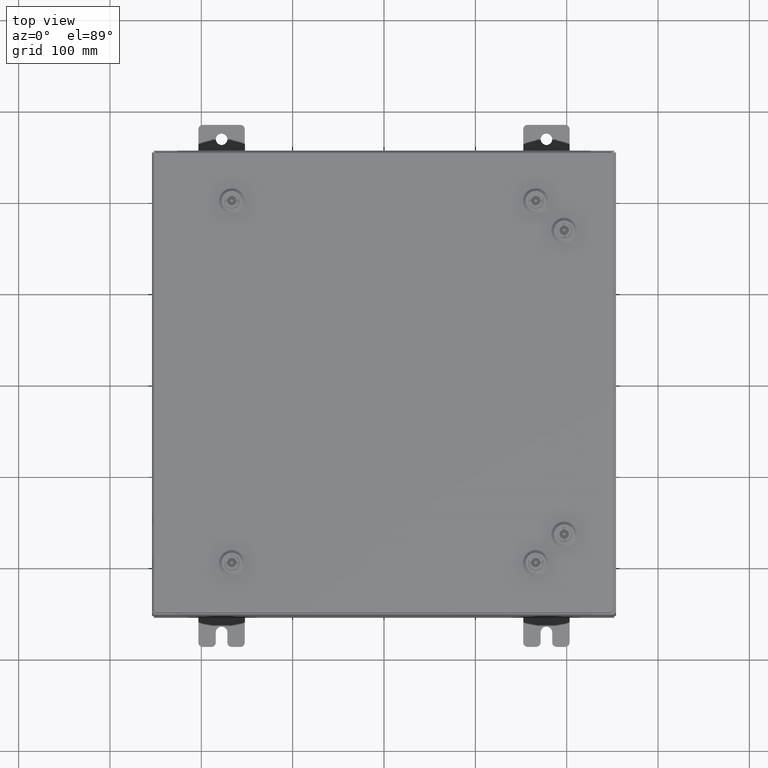
[diagram: clean part render]
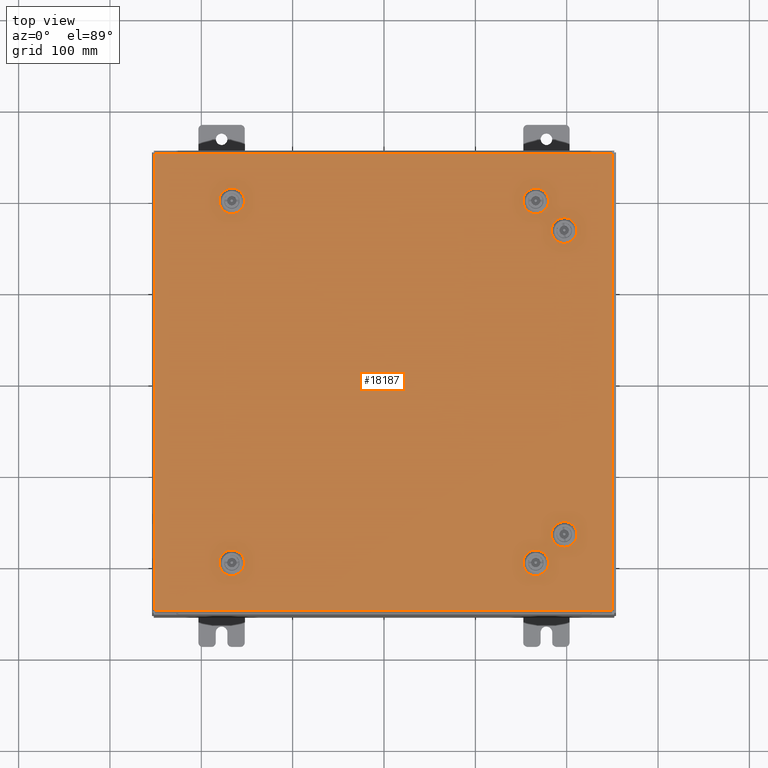
[diagram: same view with one face highlighted and labeled with its STEP entity id]
A machine part, top view. The second image highlights one B-rep face of the part: STEP entity #18187.
In plain terms, the highlighted planar face has unit normal (0, 0, -1).
Its self-contained STEP definition (entity closure, byte-faithful):
#22 = CARTESIAN_POINT ( 'NONE',  ( 8.182800000000003800, 6.363047624732128100, 0.0000000000000000000 ) ) ;
#311 = EDGE_CURVE ( 'NONE', #61048, #31898, #35029, .T. ) ;
#457 = AXIS2_PLACEMENT_3D ( 'NONE', #49362, #20015, #54211 ) ;
#518 = CARTESIAN_POINT ( 'NONE',  ( 8.182800000000000300, -6.761952375267896700, -2.447735802323179600E-013 ) ) ;
#872 = CARTESIAN_POINT ( 'NONE',  ( 7.787800000000005200, 6.562500000000010700, 0.0000000000000000000 ) ) ;
#1576 = EDGE_CURVE ( 'NONE', #29633, #61048, #63192, .T. ) ;
#1777 = DIRECTION ( 'NONE',  ( -0.0000000000000000000, -6.982962677686266700E-015, 1.000000000000000000 ) ) ;
#1798 = DIRECTION ( 'NONE',  ( -8.218046007208852600E-015, 1.000000000000000000, -0.0000000000000000000 ) ) ;
#1945 = DIRECTION ( 'NONE',  ( -1.000000000000000000, 1.369674334534793800E-014, 0.0000000000000000000 ) ) ;
#2150 = DIRECTION ( 'NONE',  ( 0.0000000000000000000, 0.0000000000000000000, 1.000000000000000000 ) ) ;
#2529 = CARTESIAN_POINT ( 'NONE',  ( 6.562499999999986700, 7.787799999999991800, -2.622574073917692700E-014 ) ) ;
#2683 = VECTOR ( 'NONE', #3079, 39.37007874015748100 ) ;
#2891 = DIRECTION ( 'NONE',  ( 1.000000000000000000, 0.0000000000000000000, 6.982962677686261200E-015 ) ) ;
#3079 = DIRECTION ( 'NONE',  ( 1.000000000000000000, -2.739348669069610000E-015, -6.982962677686248600E-015 ) ) ;
#3334 = CIRCLE ( 'NONE', #38573, 0.4424999999999983400 ) ;
#3582 = VERTEX_POINT ( 'NONE', #45254 ) ;
#3662 = VECTOR ( 'NONE', #46640, 39.37007874015748100 ) ;
#3689 = AXIS2_PLACEMENT_3D ( 'NONE', #21235, #55432, #26190 ) ;
#3944 = AXIS2_PLACEMENT_3D ( 'NONE', #40032, #10651, #44958 ) ;
#4770 = CARTESIAN_POINT ( 'NONE',  ( 7.392800000000011800, 6.761952375267901200, 0.0000000000000000000 ) ) ;
#5348 = FACE_BOUND ( 'NONE', #11235, .T. ) ;
#5511 = VERTEX_POINT ( 'NONE', #48692 ) ;
#5816 = DIRECTION ( 'NONE',  ( 1.000000000000000000, 0.0000000000000000000, 0.0000000000000000000 ) ) ;
#6907 = FACE_BOUND ( 'NONE', #38038, .T. ) ;
#7014 = CARTESIAN_POINT ( 'NONE',  ( 7.787800000000005200, 6.562500000000010700, 0.0000000000000000000 ) ) ;
#7067 = AXIS2_PLACEMENT_3D ( 'NONE', #31256, #1777, #36190 ) ;
#7082 = CIRCLE ( 'NONE', #19044, 0.4424999999999983400 ) ;
#7509 = DIRECTION ( 'NONE',  ( -1.000000000000000000, 0.0000000000000000000, 6.982962677686269100E-015 ) ) ;
#7727 = CARTESIAN_POINT ( 'NONE',  ( -6.761952375267871900, -7.392799999999994000, -4.698778549102532700E-014 ) ) ;
#8132 = EDGE_CURVE ( 'NONE', #42763, #42127, #27410, .T. ) ;
#8490 = AXIS2_PLACEMENT_3D ( 'NONE', #54530, #25251, #59462 ) ;
#9126 = LINE ( 'NONE', #21083, #59688 ) ;
#9392 = EDGE_CURVE ( 'NONE', #31898, #34465, #19656, .T. ) ;
#9394 = EDGE_CURVE ( 'NONE', #33150, #40357, #35825, .T. ) ;
#9912 = VERTEX_POINT ( 'NONE', #34617 ) ;
#10133 = EDGE_CURVE ( 'NONE', #24468, #39558, #37265, .T. ) ;
#10628 = LINE ( 'NONE', #26259, #61214 ) ;
#10651 = DIRECTION ( 'NONE',  ( 0.0000000000000000000, 0.0000000000000000000, 1.000000000000000000 ) ) ;
#10683 = ORIENTED_EDGE ( 'NONE', *, *, #311, .T. ) ;
#11075 = CARTESIAN_POINT ( 'NONE',  ( -6.761952375267871900, 7.392799999999992300, 0.0000000000000000000 ) ) ;
#11212 = CIRCLE ( 'NONE', #17992, 0.4424999999999983400 ) ;
#11235 = EDGE_LOOP ( 'NONE', ( #57836, #35453, #31455, #42371, #29610 ) ) ;
#11386 = EDGE_CURVE ( 'NONE', #42127, #27665, #15796, .T. ) ;
#11466 = LINE ( 'NONE', #49229, #62028 ) ;
#11647 = ORIENTED_EDGE ( 'NONE', *, *, #47658, .F. ) ;
#11695 = CARTESIAN_POINT ( 'NONE',  ( 7.392800000000014500, -6.761952375267901200, -2.447735802323179600E-013 ) ) ;
#11960 = DIRECTION ( 'NONE',  ( 1.000000000000000000, 0.0000000000000000000, 0.0000000000000000000 ) ) ;
#12090 = CARTESIAN_POINT ( 'NONE',  ( 8.182800000000000300, 6.761952375267896700, 0.0000000000000000000 ) ) ;
#12820 = ORIENTED_EDGE ( 'NONE', *, *, #48831, .F. ) ;
#12914 = CARTESIAN_POINT ( 'NONE',  ( 9.849799999999996600, -9.849800000000001900, 0.0000000000000000000 ) ) ;
#12940 = CARTESIAN_POINT ( 'NONE',  ( -6.119999999999989400, -7.787799999999991800, -4.917326388595673900E-014 ) ) ;
#13000 = ORIENTED_EDGE ( 'NONE', *, *, #9392, .T. ) ;
#13319 = CARTESIAN_POINT ( 'NONE',  ( 6.363047624732095300, -8.182799999999980800, -2.731847993664263300E-014 ) ) ;
#14097 = VERTEX_POINT ( 'NONE', #28596 ) ;
#14270 = AXIS2_PLACEMENT_3D ( 'NONE', #31621, #2150, #36529 ) ;
#15349 = DIRECTION ( 'NONE',  ( 0.0000000000000000000, -1.000000000000000000, 0.0000000000000000000 ) ) ;
#15689 = CARTESIAN_POINT ( 'NONE',  ( 7.787800000000006100, -6.562500000000010700, -2.425881018373865900E-013 ) ) ;
#15796 = LINE ( 'NONE', #17748, #2683 ) ;
#15806 = ORIENTED_EDGE ( 'NONE', *, *, #36925, .F. ) ;
#16069 = CARTESIAN_POINT ( 'NONE',  ( 6.761952375267871900, 7.392799999999994000, -2.731847993664263300E-014 ) ) ;
#16404 = DIRECTION ( 'NONE',  ( -0.0000000000000000000, -6.982962677686266700E-015, 1.000000000000000000 ) ) ;
#16409 = CARTESIAN_POINT ( 'NONE',  ( 6.363047624732101500, 7.392799999999995800, -2.513300154171122100E-014 ) ) ;
#16482 = DIRECTION ( 'NONE',  ( 6.982962677686266700E-015, -0.0000000000000000000, 1.000000000000000000 ) ) ;
#16606 = CARTESIAN_POINT ( 'NONE',  ( -6.363047624732095300, 8.182799999999980800, 0.0000000000000000000 ) ) ;
#17062 = VECTOR ( 'NONE', #1945, 39.37007874015748100 ) ;
#17178 = EDGE_LOOP ( 'NONE', ( #43164, #54833, #27055, #42477, #44356 ) ) ;
#17304 = CARTESIAN_POINT ( 'NONE',  ( 7.392800000000011800, 6.761952375267901200, 0.0000000000000000000 ) ) ;
#17404 = VERTEX_POINT ( 'NONE', #11075 ) ;
#17517 = ORIENTED_EDGE ( 'NONE', *, *, #57727, .F. ) ;
#17748 = CARTESIAN_POINT ( 'NONE',  ( 6.363047624732101500, 7.392799999999995800, -2.513300154171122100E-014 ) ) ;
#17992 = AXIS2_PLACEMENT_3D ( 'NONE', #7014, #41336, #11960 ) ;
#18039 = EDGE_CURVE ( 'NONE', #17404, #24115, #62097, .T. ) ;
#18187 = ADVANCED_FACE ( 'NONE', ( #18468, #6907, #46072, #31533, #5348, #55915, #42960 ), #20864, .F. ) ;
#18468 = FACE_BOUND ( 'NONE', #34828, .T. ) ;
#18797 = DIRECTION ( 'NONE',  ( -6.982962677686266700E-015, -6.982962677686266700E-015, 1.000000000000000000 ) ) ;
#18898 = ORIENTED_EDGE ( 'NONE', *, *, #30823, .F. ) ;
#19040 = CARTESIAN_POINT ( 'NONE',  ( -6.363047624732101500, -7.392799999999995800, -4.698778549102532700E-014 ) ) ;
#19044 = AXIS2_PLACEMENT_3D ( 'NONE', #52082, #22753, #56947 ) ;
#19123 = VERTEX_POINT ( 'NONE', #57248 ) ;
#19186 = ORIENTED_EDGE ( 'NONE', *, *, #9394, .F. ) ;
#19189 = LINE ( 'NONE', #19040, #56653 ) ;
#19625 = ORIENTED_EDGE ( 'NONE', *, *, #50236, .F. ) ;
#19656 = LINE ( 'NONE', #30105, #32734 ) ;
#19683 = CARTESIAN_POINT ( 'NONE',  ( 9.849799999999996600, -9.849800000000001900, 0.0000000000000000000 ) ) ;
#19781 = CARTESIAN_POINT ( 'NONE',  ( -6.363047624732095300, -8.182799999999984300, -5.245148147835385400E-014 ) ) ;
#20015 = DIRECTION ( 'NONE',  ( -0.0000000000000000000, -6.982962677686266700E-015, 1.000000000000000000 ) ) ;
#20148 = EDGE_LOOP ( 'NONE', ( #60399, #23119, #10683, #13000 ) ) ;
#20319 = DIRECTION ( 'NONE',  ( -1.000000000000000000, -1.369674334534793800E-014, 6.982962677686269100E-015 ) ) ;
#20602 = DIRECTION ( 'NONE',  ( 0.0000000000000000000, 1.000000000000000000, 6.982962677686287200E-015 ) ) ;
#20864 = PLANE ( 'NONE',  #35246 ) ;
#21083 = CARTESIAN_POINT ( 'NONE',  ( -9.849799999999996600, -9.849800000000001900, 0.0000000000000000000 ) ) ;
#21235 = CARTESIAN_POINT ( 'NONE',  ( -6.562499999999986700, -7.787799999999991800, -4.917326388595673900E-014 ) ) ;
#21414 = CARTESIAN_POINT ( 'NONE',  ( 6.363047624732095300, 8.182799999999984300, -2.513300154171122100E-014 ) ) ;
#21905 = VERTEX_POINT ( 'NONE', #13319 ) ;
#22008 = CARTESIAN_POINT ( 'NONE',  ( 8.182800000000000300, -6.761952375267896700, -2.447735802323179600E-013 ) ) ;
#22044 = CIRCLE ( 'NONE', #14270, 0.4424999999999972800 ) ;
#22095 = AXIS2_PLACEMENT_3D ( 'NONE', #26272, #60493, #31253 ) ;
#22164 = ORIENTED_EDGE ( 'NONE', *, *, #46710, .F. ) ;
#22376 = ORIENTED_EDGE ( 'NONE', *, *, #10133, .F. ) ;
#22753 = DIRECTION ( 'NONE',  ( -6.982962677686266700E-015, -6.982962677686266700E-015, 1.000000000000000000 ) ) ;
#22956 = ORIENTED_EDGE ( 'NONE', *, *, #39429, .F. ) ;
#23053 = EDGE_CURVE ( 'NONE', #28097, #24468, #52639, .T. ) ;
#23119 = ORIENTED_EDGE ( 'NONE', *, *, #1576, .T. ) ;
#23125 = VECTOR ( 'NONE', #26955, 39.37007874015748100 ) ;
#23372 = CARTESIAN_POINT ( 'NONE',  ( 9.849799999999994800, 9.849799999999996600, 0.0000000000000000000 ) ) ;
#24115 = VERTEX_POINT ( 'NONE', #45752 ) ;
#24152 = DIRECTION ( 'NONE',  ( -1.000000000000000000, 2.739348669069610000E-015, 1.946424297521510000E-029 ) ) ;
#24468 = VERTEX_POINT ( 'NONE', #19781 ) ;
#24577 = VECTOR ( 'NONE', #24810, 39.37007874015748100 ) ;
#24771 = CIRCLE ( 'NONE', #31017, 0.4424999999999972800 ) ;
#24810 = DIRECTION ( 'NONE',  ( 1.000000000000000000, 2.739348669069610000E-015, -0.0000000000000000000 ) ) ;
#24982 = DIRECTION ( 'NONE',  ( -1.000000000000000000, -2.739348669069610000E-015, -6.982962677686276200E-015 ) ) ;
#25251 = DIRECTION ( 'NONE',  ( 0.0000000000000000000, 0.0000000000000000000, 1.000000000000000000 ) ) ;
#25450 = CARTESIAN_POINT ( 'NONE',  ( -9.849799999999996600, -9.849800000000001900, 0.0000000000000000000 ) ) ;
#25632 = CARTESIAN_POINT ( 'NONE',  ( 7.392800000000010000, -6.363047624732128100, 0.0000000000000000000 ) ) ;
#25684 = VECTOR ( 'NONE', #43900, 39.37007874015748100 ) ;
#25992 = VERTEX_POINT ( 'NONE', #22 ) ;
#26046 = DIRECTION ( 'NONE',  ( 1.000000000000000000, -0.0000000000000000000, -0.0000000000000000000 ) ) ;
#26190 = DIRECTION ( 'NONE',  ( 0.0000000000000000000, 1.000000000000000000, 6.982962677686269100E-015 ) ) ;
#26259 = CARTESIAN_POINT ( 'NONE',  ( 6.363047624732095300, -8.182799999999980800, -2.731847993664263300E-014 ) ) ;
#26272 = CARTESIAN_POINT ( 'NONE',  ( 6.562499999999986700, 7.787799999999991800, -2.622574073917692700E-014 ) ) ;
#26955 = DIRECTION ( 'NONE',  ( 1.095739467627835000E-014, -1.000000000000000000, -6.982962677686248600E-015 ) ) ;
#27055 = ORIENTED_EDGE ( 'NONE', *, *, #56673, .F. ) ;
#27284 = CARTESIAN_POINT ( 'NONE',  ( 7.392800000000014500, -6.761952375267901200, -2.447735802323179600E-013 ) ) ;
#27410 = CIRCLE ( 'NONE', #40878, 0.4424999999999972800 ) ;
#27486 = EDGE_LOOP ( 'NONE', ( #61955, #37559, #22164, #49994, #22376 ) ) ;
#27665 = VERTEX_POINT ( 'NONE', #16069 ) ;
#27907 = EDGE_CURVE ( 'NONE', #57656, #21905, #24771, .T. ) ;
#28058 = ORIENTED_EDGE ( 'NONE', *, *, #29581, .F. ) ;
#28090 = EDGE_CURVE ( 'NONE', #29497, #32233, #57663, .T. ) ;
#28097 = VERTEX_POINT ( 'NONE', #40104 ) ;
#28596 = CARTESIAN_POINT ( 'NONE',  ( 6.761952375267868300, 8.182799999999989600, 0.0000000000000000000 ) ) ;
#29252 = CARTESIAN_POINT ( 'NONE',  ( -6.761952375267868300, 8.182799999999986100, 0.0000000000000000000 ) ) ;
#29497 = VERTEX_POINT ( 'NONE', #11695 ) ;
#29581 = EDGE_CURVE ( 'NONE', #55817, #29497, #62171, .T. ) ;
#29610 = ORIENTED_EDGE ( 'NONE', *, *, #8132, .F. ) ;
#29633 = VERTEX_POINT ( 'NONE', #12914 ) ;
#30066 = LINE ( 'NONE', #16606, #17062 ) ;
#30105 = CARTESIAN_POINT ( 'NONE',  ( -9.849800000000001900, 9.849799999999996600, -2.185478394931410600E-015 ) ) ;
#30768 = DIRECTION ( 'NONE',  ( -1.000000000000000000, 0.0000000000000000000, -0.0000000000000000000 ) ) ;
#30823 = EDGE_CURVE ( 'NONE', #43595, #55817, #49887, .T. ) ;
#31017 = AXIS2_PLACEMENT_3D ( 'NONE', #48155, #18797, #53004 ) ;
#31112 = LINE ( 'NONE', #49691, #52461 ) ;
#31253 = DIRECTION ( 'NONE',  ( -1.000000000000000000, 0.0000000000000000000, 6.982962677686261200E-015 ) ) ;
#31256 = CARTESIAN_POINT ( 'NONE',  ( 7.787800000000006100, -6.562500000000010700, -2.425881018373865900E-013 ) ) ;
#31287 = CARTESIAN_POINT ( 'NONE',  ( 8.182800000000000300, 6.761952375267896700, 0.0000000000000000000 ) ) ;
#31455 = ORIENTED_EDGE ( 'NONE', *, *, #51184, .F. ) ;
#31533 = FACE_BOUND ( 'NONE', #27486, .T. ) ;
#31621 = CARTESIAN_POINT ( 'NONE',  ( -6.562499999999986700, 7.787799999999989200, 0.0000000000000000000 ) ) ;
#31627 = CARTESIAN_POINT ( 'NONE',  ( -6.119999999999989400, 7.787799999999989200, 0.0000000000000000000 ) ) ;
#31898 = VERTEX_POINT ( 'NONE', #33153 ) ;
#32025 = CARTESIAN_POINT ( 'NONE',  ( 8.182800000000003800, -6.363047624732128100, -2.414953626399208800E-013 ) ) ;
#32233 = VERTEX_POINT ( 'NONE', #518 ) ;
#32381 = DIRECTION ( 'NONE',  ( -6.982962677686266700E-015, -6.982962677686266700E-015, 1.000000000000000000 ) ) ;
#32542 = LINE ( 'NONE', #22008, #56928 ) ;
#32618 = VECTOR ( 'NONE', #1798, 39.37007874015748100 ) ;
#32734 = VECTOR ( 'NONE', #15349, 39.37007874015748100 ) ;
#32975 = EDGE_CURVE ( 'NONE', #21905, #59750, #10628, .T. ) ;
#33150 = VERTEX_POINT ( 'NONE', #12090 ) ;
#33153 = CARTESIAN_POINT ( 'NONE',  ( -9.849800000000001900, 9.849799999999996600, -2.185478394931410600E-015 ) ) ;
#34465 = VERTEX_POINT ( 'NONE', #25450 ) ;
#34617 = CARTESIAN_POINT ( 'NONE',  ( 7.004999999999984800, 7.787799999999991800, -2.931570172405309100E-014 ) ) ;
#34754 = AXIS2_PLACEMENT_3D ( 'NONE', #45761, #16404, #50676 ) ;
#34828 = EDGE_LOOP ( 'NONE', ( #28058, #18898, #22956, #52276 ) ) ;
#35029 = LINE ( 'NONE', #23372, #59427 ) ;
#35203 = ORIENTED_EDGE ( 'NONE', *, *, #61656, .F. ) ;
#35246 = AXIS2_PLACEMENT_3D ( 'NONE', #55075, #60009, #30768 ) ;
#35290 = DIRECTION ( 'NONE',  ( 0.0000000000000000000, 0.0000000000000000000, 1.000000000000000000 ) ) ;
#35453 = ORIENTED_EDGE ( 'NONE', *, *, #61757, .F. ) ;
#35825 = CIRCLE ( 'NONE', #43571, 0.4424999999999972800 ) ;
#36190 = DIRECTION ( 'NONE',  ( 0.0000000000000000000, 1.000000000000000000, 6.982962677686270700E-015 ) ) ;
#36432 = VERTEX_POINT ( 'NONE', #49585 ) ;
#36529 = DIRECTION ( 'NONE',  ( 1.000000000000000000, 0.0000000000000000000, 0.0000000000000000000 ) ) ;
#36925 = EDGE_CURVE ( 'NONE', #48579, #17404, #49514, .T. ) ;
#36927 = DIRECTION ( 'NONE',  ( 6.982962677686266700E-015, -0.0000000000000000000, 1.000000000000000000 ) ) ;
#37265 = CIRCLE ( 'NONE', #3689, 0.4424999999999972800 ) ;
#37559 = ORIENTED_EDGE ( 'NONE', *, *, #58628, .F. ) ;
#37723 = EDGE_CURVE ( 'NONE', #14097, #42763, #31112, .T. ) ;
#38038 = EDGE_LOOP ( 'NONE', ( #39090, #19625, #11647, #19186 ) ) ;
#38573 = AXIS2_PLACEMENT_3D ( 'NONE', #61595, #32381, #2891 ) ;
#38650 = EDGE_CURVE ( 'NONE', #19123, #38849, #3334, .T. ) ;
#38839 = DIRECTION ( 'NONE',  ( 1.000000000000000000, 1.369674334534793800E-014, 9.732121487607470400E-029 ) ) ;
#38849 = VERTEX_POINT ( 'NONE', #56243 ) ;
#39090 = ORIENTED_EDGE ( 'NONE', *, *, #40010, .F. ) ;
#39429 = EDGE_CURVE ( 'NONE', #32233, #43595, #32542, .T. ) ;
#39558 = VERTEX_POINT ( 'NONE', #12940 ) ;
#39862 = CARTESIAN_POINT ( 'NONE',  ( 6.761952375267868300, -8.182799999999986100, -2.513300154171122100E-014 ) ) ;
#40010 = EDGE_CURVE ( 'NONE', #25992, #33150, #60087, .T. ) ;
#40032 = CARTESIAN_POINT ( 'NONE',  ( -6.562499999999986700, 7.787799999999989200, 0.0000000000000000000 ) ) ;
#40104 = CARTESIAN_POINT ( 'NONE',  ( -6.761952375267868300, -8.182799999999989600, 0.0000000000000000000 ) ) ;
#40357 = VERTEX_POINT ( 'NONE', #4770 ) ;
#40421 = EDGE_LOOP ( 'NONE', ( #53788, #15806, #17517, #35203, #12820 ) ) ;
#40840 = AXIS2_PLACEMENT_3D ( 'NONE', #15689, #49966, #20602 ) ;
#40878 = AXIS2_PLACEMENT_3D ( 'NONE', #2529, #36927, #7509 ) ;
#41336 = DIRECTION ( 'NONE',  ( 0.0000000000000000000, 0.0000000000000000000, 1.000000000000000000 ) ) ;
#41357 = AXIS2_PLACEMENT_3D ( 'NONE', #45843, #16482, #50748 ) ;
#41504 = CIRCLE ( 'NONE', #34754, 0.4424999999999983400 ) ;
#42127 = VERTEX_POINT ( 'NONE', #16409 ) ;
#42371 = ORIENTED_EDGE ( 'NONE', *, *, #11386, .F. ) ;
#42477 = ORIENTED_EDGE ( 'NONE', *, *, #32975, .F. ) ;
#42763 = VERTEX_POINT ( 'NONE', #21414 ) ;
#42960 = FACE_OUTER_BOUND ( 'NONE', #20148, .T. ) ;
#43164 = ORIENTED_EDGE ( 'NONE', *, *, #46915, .F. ) ;
#43349 = EDGE_CURVE ( 'NONE', #39558, #3582, #59906, .T. ) ;
#43571 = AXIS2_PLACEMENT_3D ( 'NONE', #872, #35290, #5816 ) ;
#43595 = VERTEX_POINT ( 'NONE', #32025 ) ;
#43900 = DIRECTION ( 'NONE',  ( 0.0000000000000000000, 1.000000000000000000, 0.0000000000000000000 ) ) ;
#44142 = CIRCLE ( 'NONE', #41357, 0.4424999999999983400 ) ;
#44356 = ORIENTED_EDGE ( 'NONE', *, *, #27907, .F. ) ;
#44958 = DIRECTION ( 'NONE',  ( 1.000000000000000000, 0.0000000000000000000, 0.0000000000000000000 ) ) ;
#45254 = CARTESIAN_POINT ( 'NONE',  ( -6.363047624732101500, -7.392799999999995800, -4.698778549102532700E-014 ) ) ;
#45752 = CARTESIAN_POINT ( 'NONE',  ( -6.363047624732101500, 7.392799999999993200, 0.0000000000000000000 ) ) ;
#45761 = CARTESIAN_POINT ( 'NONE',  ( -6.562499999999986700, -7.787799999999991800, -4.917326388595673900E-014 ) ) ;
#45772 = DIRECTION ( 'NONE',  ( 1.000000000000000000, -1.369674334534793800E-014, 6.982962677686171300E-015 ) ) ;
#45843 = CARTESIAN_POINT ( 'NONE',  ( 6.562499999999986700, 7.787799999999991800, -2.622574073917692700E-014 ) ) ;
#46072 = FACE_BOUND ( 'NONE', #17178, .T. ) ;
#46640 = DIRECTION ( 'NONE',  ( -8.218046007208762600E-015, -1.000000000000000000, 0.0000000000000000000 ) ) ;
#46681 = DIRECTION ( 'NONE',  ( 8.218046007208852600E-015, 1.000000000000000000, 6.982962677686325100E-015 ) ) ;
#46710 = EDGE_CURVE ( 'NONE', #3582, #53196, #19189, .T. ) ;
#46915 = EDGE_CURVE ( 'NONE', #38849, #57656, #11466, .T. ) ;
#47658 = EDGE_CURVE ( 'NONE', #40357, #36432, #55786, .T. ) ;
#48155 = CARTESIAN_POINT ( 'NONE',  ( 6.562499999999986700, -7.787799999999989200, -2.294752314677981200E-014 ) ) ;
#48579 = VERTEX_POINT ( 'NONE', #29252 ) ;
#48692 = CARTESIAN_POINT ( 'NONE',  ( -6.363047624732095300, 8.182799999999980800, 0.0000000000000000000 ) ) ;
#48766 = CIRCLE ( 'NONE', #8490, 0.4424999999999972800 ) ;
#48831 = EDGE_CURVE ( 'NONE', #24115, #56558, #22044, .T. ) ;
#49229 = CARTESIAN_POINT ( 'NONE',  ( 6.363047624732101500, -7.392799999999993200, -2.185478394931410600E-014 ) ) ;
#49362 = CARTESIAN_POINT ( 'NONE',  ( -6.562499999999986700, -7.787799999999991800, -4.917326388595673900E-014 ) ) ;
#49514 = CIRCLE ( 'NONE', #3944, 0.4424999999999983400 ) ;
#49585 = CARTESIAN_POINT ( 'NONE',  ( 7.392800000000008300, 6.363047624732128100, 0.0000000000000000000 ) ) ;
#49691 = CARTESIAN_POINT ( 'NONE',  ( 6.363047624732095300, 8.182799999999984300, -2.513300154171122100E-014 ) ) ;
#49887 = CIRCLE ( 'NONE', #7067, 0.4424999999999983400 ) ;
#49966 = DIRECTION ( 'NONE',  ( -0.0000000000000000000, -6.982962677686266700E-015, 1.000000000000000000 ) ) ;
#49994 = ORIENTED_EDGE ( 'NONE', *, *, #43349, .F. ) ;
#50236 = EDGE_CURVE ( 'NONE', #36432, #25992, #11212, .T. ) ;
#50676 = DIRECTION ( 'NONE',  ( 0.0000000000000000000, 1.000000000000000000, 6.982962677686270700E-015 ) ) ;
#50748 = DIRECTION ( 'NONE',  ( -1.000000000000000000, 0.0000000000000000000, 6.982962677686261200E-015 ) ) ;
#51158 = VECTOR ( 'NONE', #38839, 39.37007874015748100 ) ;
#51184 = EDGE_CURVE ( 'NONE', #27665, #9912, #54786, .T. ) ;
#52082 = CARTESIAN_POINT ( 'NONE',  ( 6.562499999999986700, -7.787799999999989200, -2.294752314677981200E-014 ) ) ;
#52276 = ORIENTED_EDGE ( 'NONE', *, *, #28090, .F. ) ;
#52461 = VECTOR ( 'NONE', #20319, 39.37007874015748100 ) ;
#52639 = LINE ( 'NONE', #63163, #51158 ) ;
#53004 = DIRECTION ( 'NONE',  ( 1.000000000000000000, 0.0000000000000000000, 6.982962677686269100E-015 ) ) ;
#53196 = VERTEX_POINT ( 'NONE', #7727 ) ;
#53788 = ORIENTED_EDGE ( 'NONE', *, *, #18039, .F. ) ;
#54211 = DIRECTION ( 'NONE',  ( 0.0000000000000000000, 1.000000000000000000, 6.982962677686269100E-015 ) ) ;
#54530 = CARTESIAN_POINT ( 'NONE',  ( -6.562499999999986700, 7.787799999999989200, 0.0000000000000000000 ) ) ;
#54786 = CIRCLE ( 'NONE', #22095, 0.4424999999999983400 ) ;
#54833 = ORIENTED_EDGE ( 'NONE', *, *, #38650, .F. ) ;
#55075 = CARTESIAN_POINT ( 'NONE',  ( 0.0000000000000000000, 0.0000000000000000000, 0.0000000000000000000 ) ) ;
#55273 = CARTESIAN_POINT ( 'NONE',  ( 6.363047624732101500, -7.392799999999993200, -2.185478394931410600E-014 ) ) ;
#55432 = DIRECTION ( 'NONE',  ( -0.0000000000000000000, -6.982962677686266700E-015, 1.000000000000000000 ) ) ;
#55786 = LINE ( 'NONE', #17304, #3662 ) ;
#55817 = VERTEX_POINT ( 'NONE', #25632 ) ;
#55915 = FACE_BOUND ( 'NONE', #40421, .T. ) ;
#56243 = CARTESIAN_POINT ( 'NONE',  ( 6.761952375267871900, -7.392799999999992300, 0.0000000000000000000 ) ) ;
#56558 = VERTEX_POINT ( 'NONE', #31627 ) ;
#56653 = VECTOR ( 'NONE', #24152, 39.37007874015748100 ) ;
#56673 = EDGE_CURVE ( 'NONE', #59750, #19123, #7082, .T. ) ;
#56928 = VECTOR ( 'NONE', #46681, 39.37007874015748100 ) ;
#56947 = DIRECTION ( 'NONE',  ( 1.000000000000000000, 0.0000000000000000000, 6.982962677686261200E-015 ) ) ;
#57248 = CARTESIAN_POINT ( 'NONE',  ( 7.004999999999984800, -7.787799999999989200, -1.985756216190364800E-014 ) ) ;
#57656 = VERTEX_POINT ( 'NONE', #55273 ) ;
#57663 = CIRCLE ( 'NONE', #40840, 0.4424999999999972800 ) ;
#57727 = EDGE_CURVE ( 'NONE', #5511, #48579, #30066, .T. ) ;
#57836 = ORIENTED_EDGE ( 'NONE', *, *, #37723, .F. ) ;
#58628 = EDGE_CURVE ( 'NONE', #53196, #28097, #41504, .T. ) ;
#58655 = DIRECTION ( 'NONE',  ( -1.000000000000000000, -0.0000000000000000000, -0.0000000000000000000 ) ) ;
#59042 = CARTESIAN_POINT ( 'NONE',  ( -6.363047624732101500, 7.392799999999993200, 0.0000000000000000000 ) ) ;
#59427 = VECTOR ( 'NONE', #58655, 39.37007874015748100 ) ;
#59462 = DIRECTION ( 'NONE',  ( 1.000000000000000000, 0.0000000000000000000, 0.0000000000000000000 ) ) ;
#59688 = VECTOR ( 'NONE', #26046, 39.37007874015748100 ) ;
#59750 = VERTEX_POINT ( 'NONE', #39862 ) ;
#59906 = CIRCLE ( 'NONE', #457, 0.4424999999999972800 ) ;
#60009 = DIRECTION ( 'NONE',  ( 0.0000000000000000000, 0.0000000000000000000, -1.000000000000000000 ) ) ;
#60087 = LINE ( 'NONE', #31287, #32618 ) ;
#60399 = ORIENTED_EDGE ( 'NONE', *, *, #60678, .T. ) ;
#60493 = DIRECTION ( 'NONE',  ( 6.982962677686266700E-015, -0.0000000000000000000, 1.000000000000000000 ) ) ;
#60678 = EDGE_CURVE ( 'NONE', #34465, #29633, #9126, .T. ) ;
#61048 = VERTEX_POINT ( 'NONE', #63014 ) ;
#61214 = VECTOR ( 'NONE', #45772, 39.37007874015748100 ) ;
#61595 = CARTESIAN_POINT ( 'NONE',  ( 6.562499999999986700, -7.787799999999989200, -2.294752314677981200E-014 ) ) ;
#61656 = EDGE_CURVE ( 'NONE', #56558, #5511, #48766, .T. ) ;
#61757 = EDGE_CURVE ( 'NONE', #9912, #14097, #44142, .T. ) ;
#61955 = ORIENTED_EDGE ( 'NONE', *, *, #23053, .F. ) ;
#62028 = VECTOR ( 'NONE', #24982, 39.37007874015748100 ) ;
#62097 = LINE ( 'NONE', #59042, #24577 ) ;
#62171 = LINE ( 'NONE', #27284, #23125 ) ;
#63014 = CARTESIAN_POINT ( 'NONE',  ( 9.849799999999994800, 9.849799999999996600, 0.0000000000000000000 ) ) ;
#63163 = CARTESIAN_POINT ( 'NONE',  ( -6.363047624732095300, -8.182799999999984300, -5.245148147835385400E-014 ) ) ;
#63192 = LINE ( 'NONE', #19683, #25684 ) ;